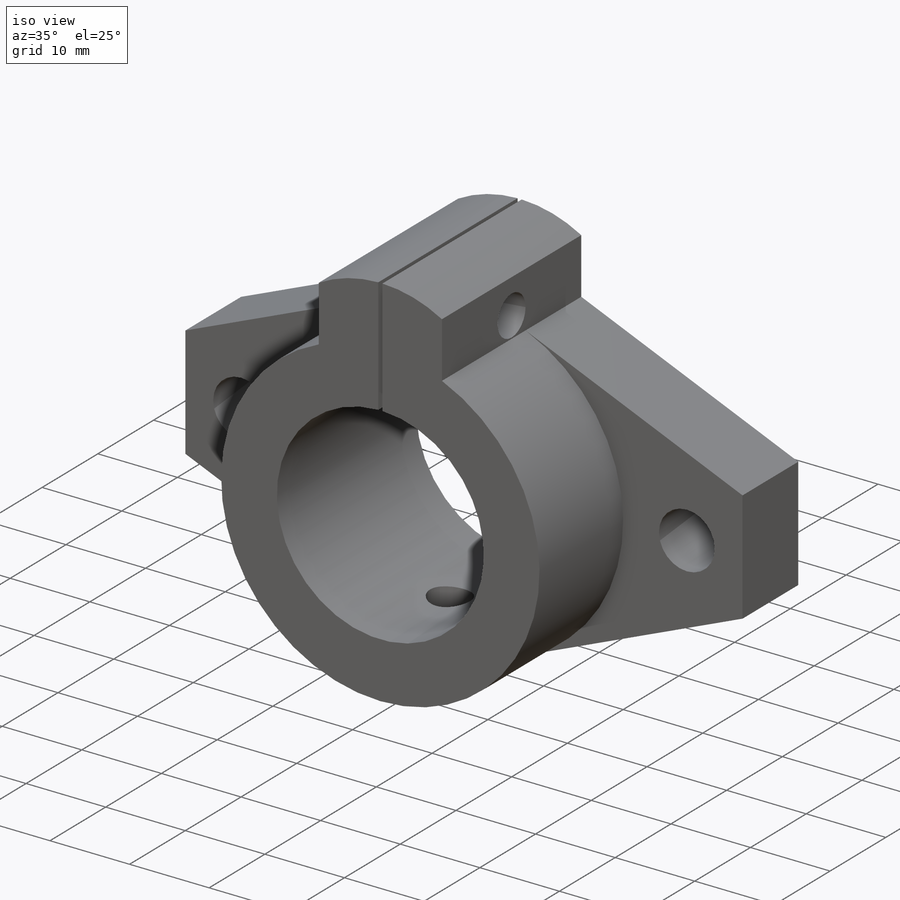
[diagram: iso view]
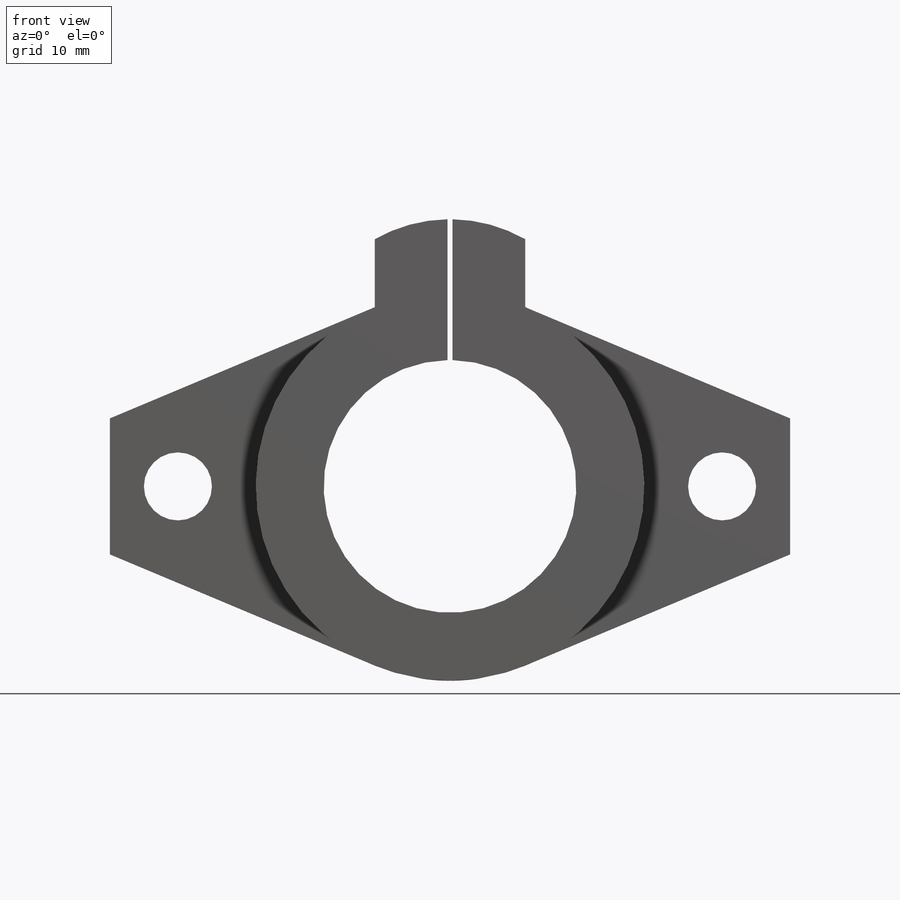
[diagram: front view]
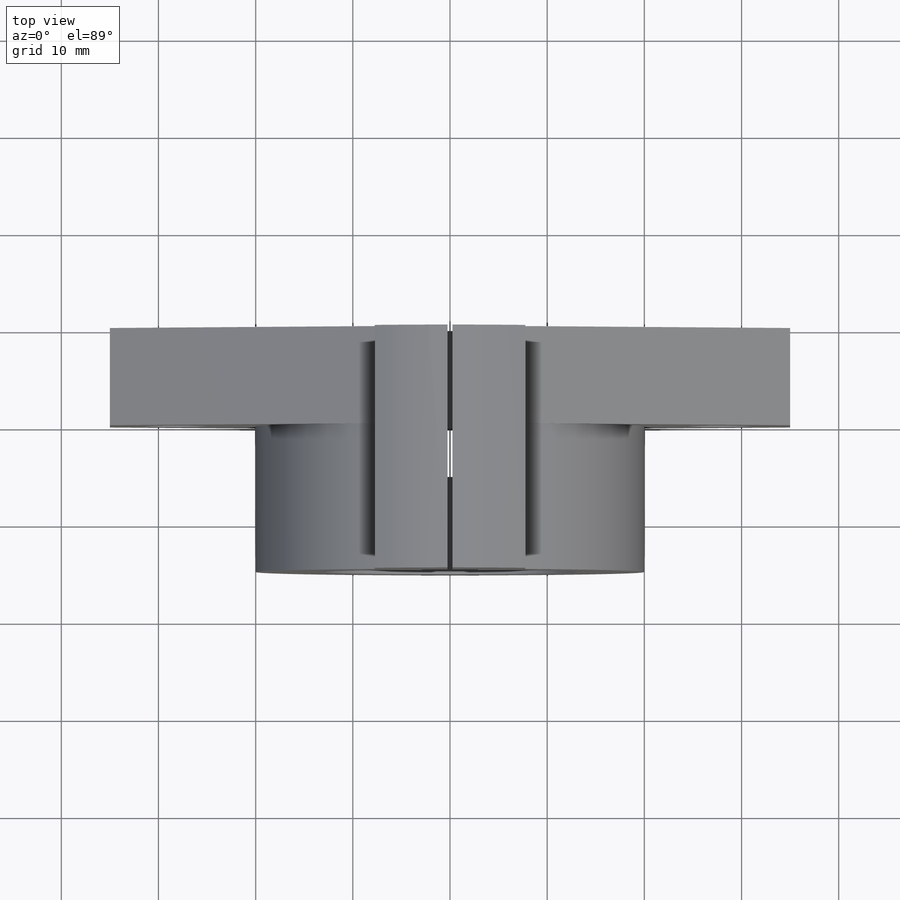
[diagram: top view]
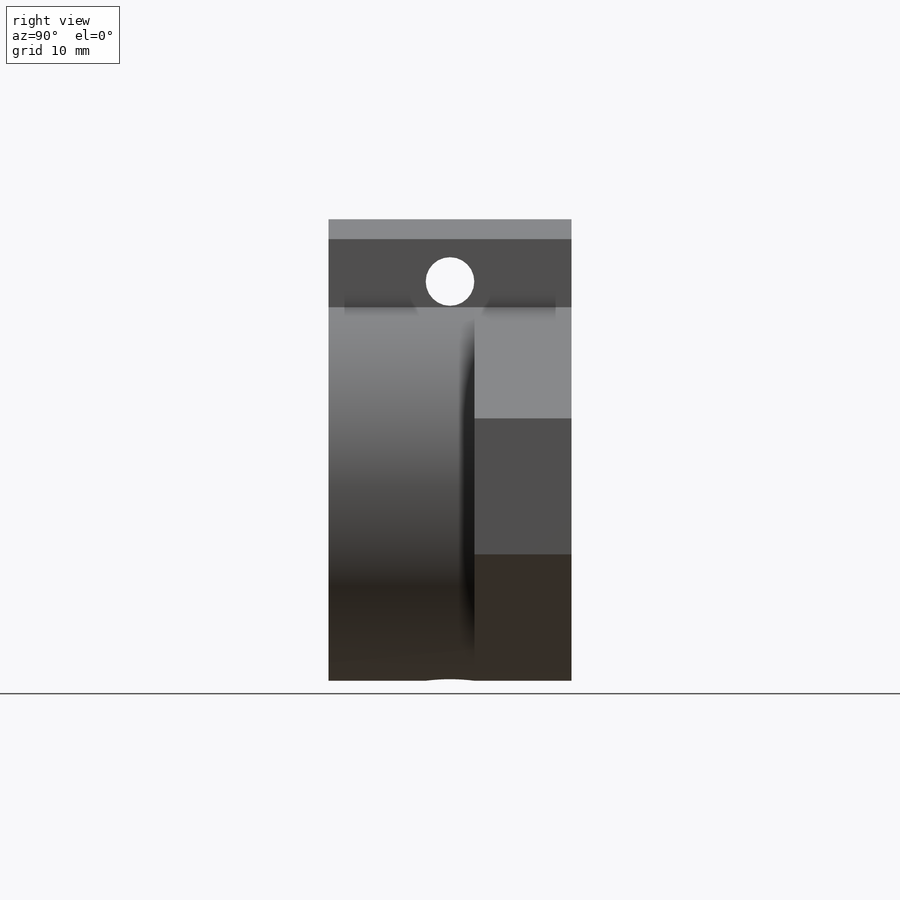
[diagram: right view]
SOLIDWORKS PART (.sldprt)
format: sldprt  version: not decoded by parser v0  size: 275,456 bytes
history: native  units: mm
features: sketch x5, plane x3, cut_extrude x3, extrude x2, material x1 (+10 scaffold rows collapsed)
feature tree (24):
  scaffold x10  (default folders/planes/origin — collapsed)
  material  "6061 合金"
  plane  "前视基准面"
  plane  "上视基准面"
  plane  "右视基准面"
  sketch  "草图1"  dims[c1.D1=6.0mm c1.D3=26.0mm c1.D4=20.0mm c1.D5=7.0mm c1.D6=7.0mm c2.D1=28.0mm c2.D2=28.0mm c2.D6=~6.590926mm c2.D7=70.0mm]
  extrude  "凸台-拉伸2"  Depth=10mm
  sketch  "草图2"  dims[D1=7.0mm]
  extrude  "凸台-拉伸3"  Depth=15mm
  sketch  "草图3"  dims[D1=~0.517195mm]
  cut_extrude  "切除-拉伸1"  [1 undecoded]
  sketch  "草图4"  dims[D1=2.0mm]
  cut_extrude  "切除-拉伸2"  [1 undecoded]
  sketch  "草图5"  dims[D1=5.0mm D2=12.5mm]
  cut_extrude  "切除-拉伸3"  [1 undecoded]
decode coverage: 7 of 10 modeling features carry decoded parameters
note: ~ marks probable driven/reference dimensions
note: 3 parameter values undecoded
summary: no parameter record found for 3 features
note: suppression state not decoded; provenance and decode notes live in map.json
